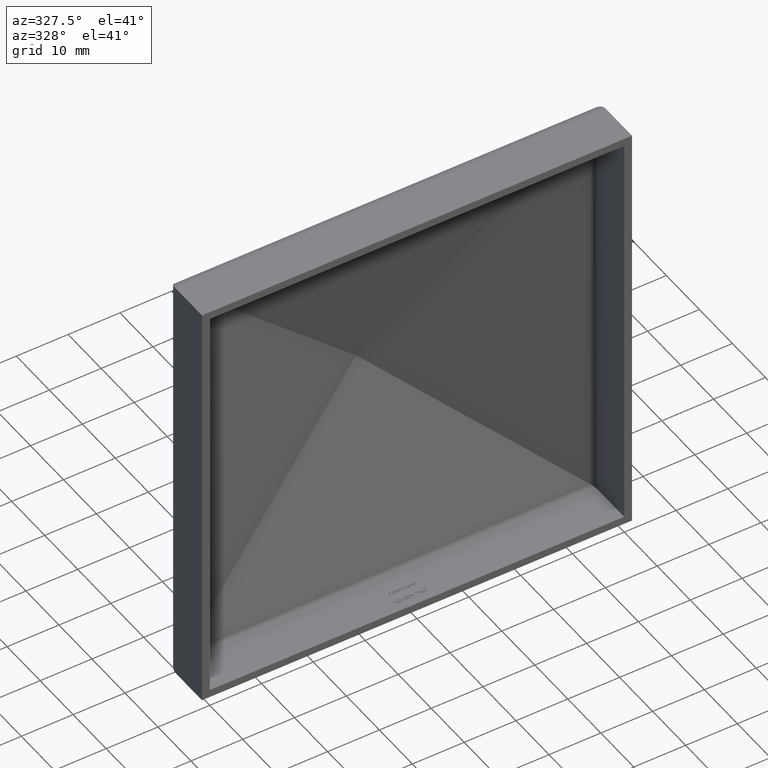
[diagram: clean part render]
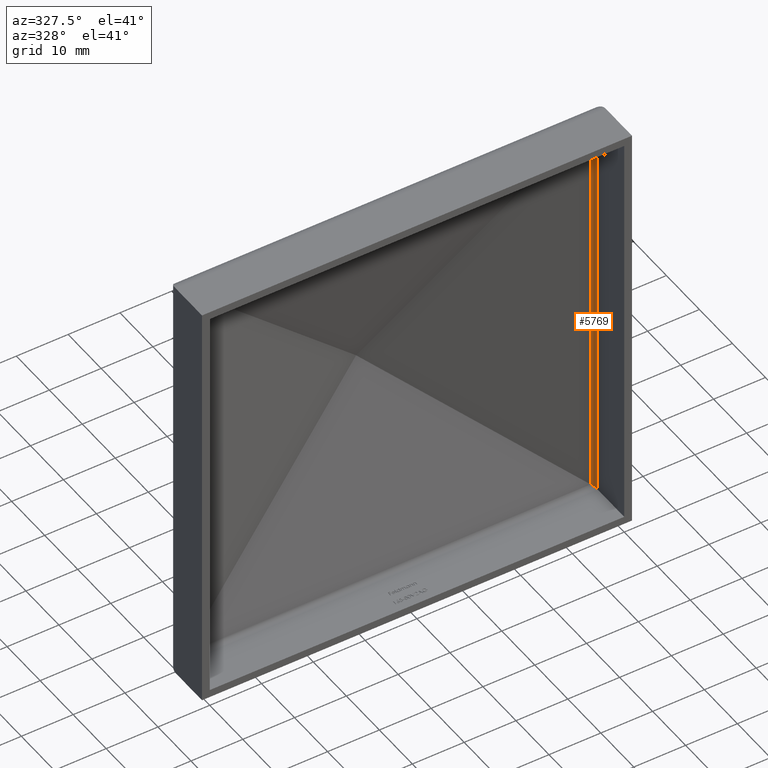
[diagram: same view with one face highlighted and labeled with its STEP entity id]
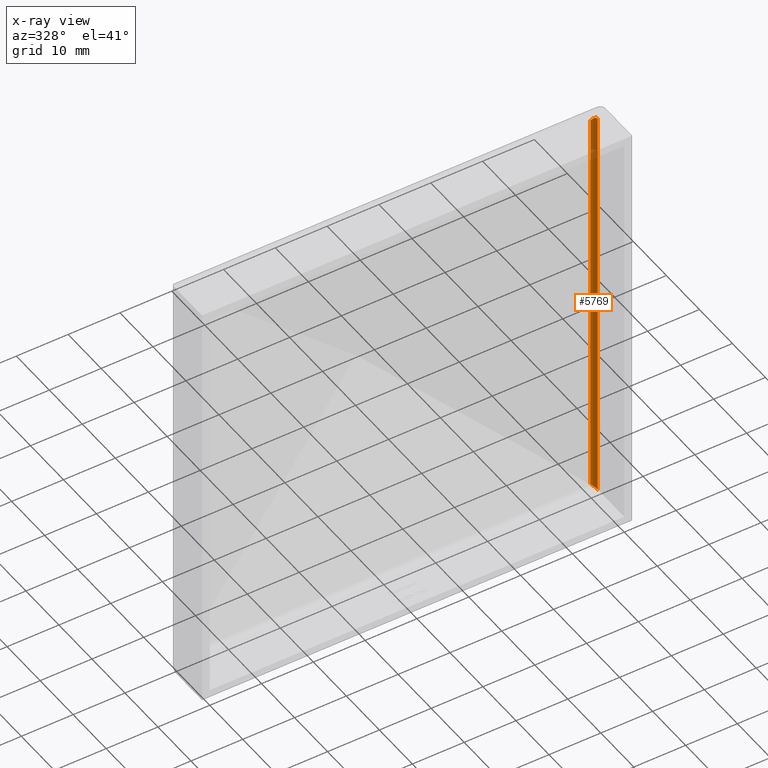
[diagram: x-ray of the same camera — body ghosted, the highlighted face saturated]
A machine part, auxiliary view. The second image highlights one B-rep face of the part: STEP entity #5769.
The next image is the same camera in x-ray: the body ghosted, the highlighted face saturated — about 2% of this face is hidden behind the body in this view.
In plain terms, the highlighted cylindrical surface (edge-blend (fillet) strip) has radius 1 mm, axis along (-0, -0, 1).
Its self-contained STEP definition (entity closure, byte-faithful):
#146 = VERTEX_POINT ( 'NONE', #2941 ) ;
#399 = ORIENTED_EDGE ( 'NONE', *, *, #9954, .F. ) ;
#566 = CARTESIAN_POINT ( 'NONE',  ( 39.70220904672250800, 8.890369186475286500, 39.70220904672249400 ) ) ;
#898 = ORIENTED_EDGE ( 'NONE', *, *, #5971, .T. ) ;
#953 = CARTESIAN_POINT ( 'NONE',  ( 39.99999999999999300, 8.512272587464378800, -40.00000000000001400 ) ) ;
#1504 = CARTESIAN_POINT ( 'NONE',  ( 40.00000000000000700, 8.030986300481741200, 39.99999999999999300 ) ) ;
#2229 = VECTOR ( 'NONE', #5740, 1000.000000000000000 ) ;
#2708 = DIRECTION ( 'NONE',  ( -0.0000000000000000000, -0.0000000000000000000, 1.000000000000000000 ) ) ;
#2883 = ORIENTED_EDGE ( 'NONE', *, *, #8600, .T. ) ;
#2941 = CARTESIAN_POINT ( 'NONE',  ( 39.99999999999999300, 8.030986300481739400, -40.00000000000000700 ) ) ;
#3536 = VERTEX_POINT ( 'NONE', #7380 ) ;
#4606 = CARTESIAN_POINT ( 'NONE',  ( 39.23432226209654100, 9.003145277957116800, -41.49999999999999300 ) ) ;
#4764 = VECTOR ( 'NONE', #10688, 1000.000000000000000 ) ;
#4962 = DIRECTION ( 'NONE',  ( 1.000000000000000000, 0.0000000000000000000, 0.0000000000000000000 ) ) ;
#5587 = AXIS2_PLACEMENT_3D ( 'NONE', #13479, #2708, #4962 ) ;
#5740 = DIRECTION ( 'NONE',  ( -0.0000000000000000000, -0.0000000000000000000, 1.000000000000000000 ) ) ;
#5769 = ADVANCED_FACE ( 'NONE', ( #10466 ), #12593, .F. ) ;
#5971 = EDGE_CURVE ( 'NONE', #146, #7387, #9982, .T. ) ;
#6939 = CARTESIAN_POINT ( 'NONE',  ( 40.00000000000000000, 8.512272587464377000, 39.99999999999997200 ) ) ;
#7260 =( BOUNDED_CURVE ( )  B_SPLINE_CURVE ( 3, ( #9376, #13674, #953, #8368 ),
 .UNSPECIFIED., .F., .T. ) 
 B_SPLINE_CURVE_WITH_KNOTS ( ( 4, 4 ),
 ( 1.807317689056108200, 3.141592653589793100 ),
 .UNSPECIFIED. ) 
 CURVE ( )  GEOMETRIC_REPRESENTATION_ITEM ( )  RATIONAL_B_SPLINE_CURVE ( ( 1.000000000000000000, 0.8570640236899850200, 0.8570640236899850200, 1.000000000000000000 ) ) 
 REPRESENTATION_ITEM ( '' )  );
#7380 = CARTESIAN_POINT ( 'NONE',  ( 39.23432226209655500, 9.003145277957120400, 39.23432226209654100 ) ) ;
#7387 = VERTEX_POINT ( 'NONE', #1504 ) ;
#7611 = CARTESIAN_POINT ( 'NONE',  ( 39.99999999999999300, 8.030986300481741200, -41.49999999999999300 ) ) ;
#7934 = ORIENTED_EDGE ( 'NONE', *, *, #9788, .T. ) ;
#8368 = CARTESIAN_POINT ( 'NONE',  ( 39.99999999999999300, 8.030986300481739400, -40.00000000000000700 ) ) ;
#8600 = EDGE_CURVE ( 'NONE', #8744, #146, #7260, .T. ) ;
#8744 = VERTEX_POINT ( 'NONE', #13056 ) ;
#9362 = EDGE_LOOP ( 'NONE', ( #2883, #898, #7934, #399 ) ) ;
#9376 = CARTESIAN_POINT ( 'NONE',  ( 39.23432226209656900, 9.003145277957113300, -39.23432226209654800 ) ) ;
#9788 = EDGE_CURVE ( 'NONE', #7387, #3536, #11965, .T. ) ;
#9954 = EDGE_CURVE ( 'NONE', #8744, #3536, #10572, .T. ) ;
#9982 = LINE ( 'NONE', #7611, #4764 ) ;
#10173 = CARTESIAN_POINT ( 'NONE',  ( 39.23432226209655500, 9.003145277957120400, 39.23432226209654100 ) ) ;
#10466 = FACE_OUTER_BOUND ( 'NONE', #9362, .T. ) ;
#10572 = LINE ( 'NONE', #4606, #2229 ) ;
#10688 = DIRECTION ( 'NONE',  ( 8.360113137237623700E-017, 0.0000000000000000000, 1.000000000000000000 ) ) ;
#11965 =( BOUNDED_CURVE ( )  B_SPLINE_CURVE ( 3, ( #12291, #6939, #566, #10173 ),
 .UNSPECIFIED., .F., .F. ) 
 B_SPLINE_CURVE_WITH_KNOTS ( ( 4, 4 ),
 ( 1.734723475976787200E-015, 1.334274964533676900 ),
 .UNSPECIFIED. ) 
 CURVE ( )  GEOMETRIC_REPRESENTATION_ITEM ( )  RATIONAL_B_SPLINE_CURVE ( ( 1.000000000000000000, 0.8570640236899871300, 0.8570640236899871300, 1.000000000000000000 ) ) 
 REPRESENTATION_ITEM ( '' )  );
#12291 = CARTESIAN_POINT ( 'NONE',  ( 40.00000000000000700, 8.030986300481741200, 39.99999999999999300 ) ) ;
#12593 = CYLINDRICAL_SURFACE ( 'NONE', #5587, 1.000000000000007800 ) ;
#13056 = CARTESIAN_POINT ( 'NONE',  ( 39.23432226209656900, 9.003145277957113300, -39.23432226209654800 ) ) ;
#13479 = CARTESIAN_POINT ( 'NONE',  ( 39.00000000000000000, 8.030986300481739400, -41.49999999999999300 ) ) ;
#13674 = CARTESIAN_POINT ( 'NONE',  ( 39.70220904672251500, 8.890369186475290100, -39.70220904672252300 ) ) ;